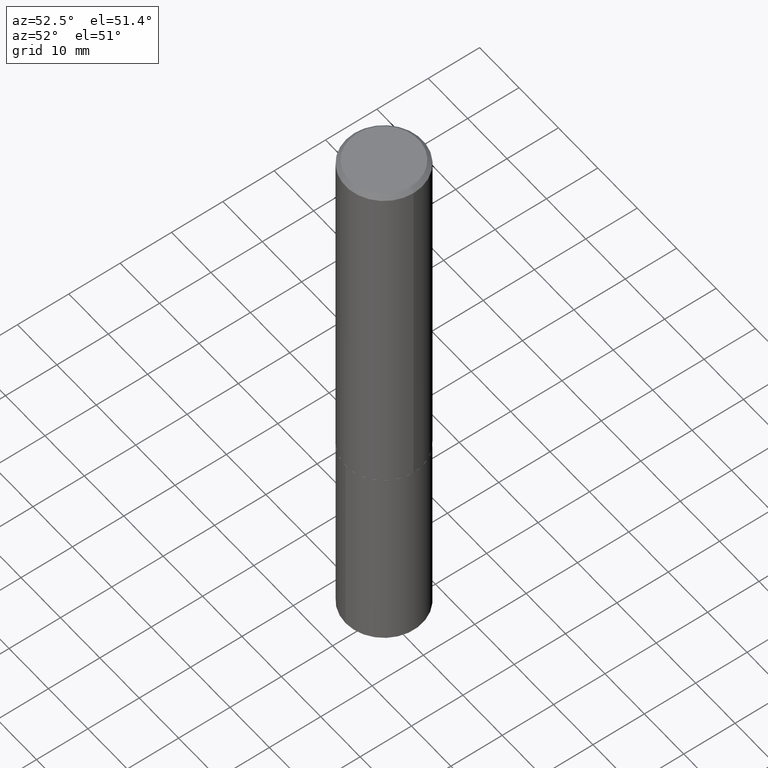
[diagram: clean part render]
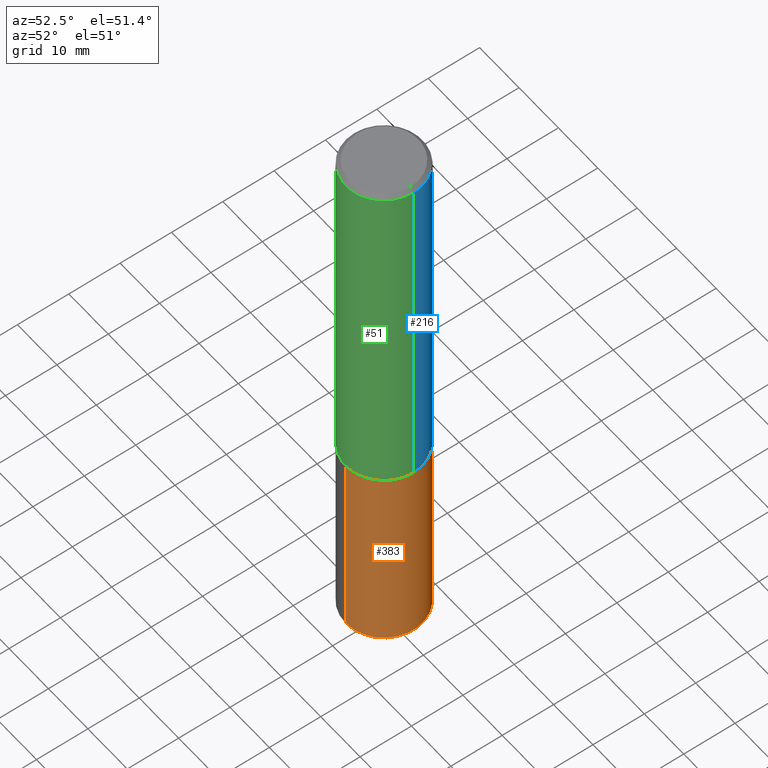
[diagram: same view with three faces highlighted in distinct colors, each labeled with its STEP entity id]
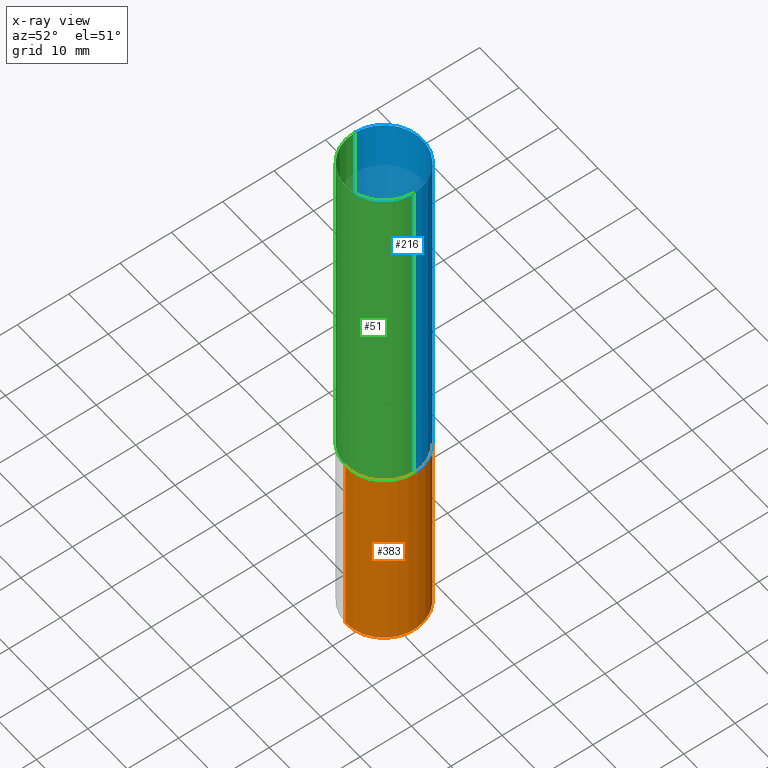
[diagram: x-ray of the same camera — body ghosted, the three highlighted faces saturated]
A machine part, auxiliary view with three faces highlighted in distinct colors.
The next image is the same camera in x-ray (body ghosted, the three faces saturated) — at least one of them is partly hidden behind the body in this view.
Their STEP definitions:

[orange] entity #383 — the highlighted cylindrical surface (partial cylindrical patch) has radius 7.5006 mm, axis along (-0, 0, 1).
#7 = VECTOR ( 'NONE', #241, 39.37007874015748143 ) ;
#33 = CARTESIAN_POINT ( 'NONE',  ( 2.098232698699643346E-15, 0.2952999999999904035, -2.756000000000000671 ) ) ;
#37 = CARTESIAN_POINT ( 'NONE',  ( 6.739712029846235896E-29, -9.622522569851707902E-15, -2.755999999999999783 ) ) ;
#57 = DIRECTION ( 'NONE',  ( -6.982962677686266711E-15, -1.000000000000000000, 3.700437512582814508E-15 ) ) ;
#68 = ORIENTED_EDGE ( 'NONE', *, *, #73, .T. ) ;
#71 = VERTEX_POINT ( 'NONE', #106 ) ;
#73 = EDGE_CURVE ( 'NONE', #205, #102, #199, .T. ) ;
#76 = AXIS2_PLACEMENT_3D ( 'NONE', #37, #176, #294 ) ;
#85 = DIRECTION ( 'NONE',  ( -2.445550241585909983E-29, 3.491364718714222925E-15, 1.000000000000000000 ) ) ;
#102 = VERTEX_POINT ( 'NONE', #377 ) ;
#106 = CARTESIAN_POINT ( 'NONE',  ( 2.098232698699681211E-15, 0.2952999999999904590, -2.756000000000000671 ) ) ;
#115 = AXIS2_PLACEMENT_3D ( 'NONE', #284, #139, #57 ) ;
#117 = FACE_OUTER_BOUND ( 'NONE', #222, .T. ) ;
#139 = DIRECTION ( 'NONE',  ( -2.445550241585909983E-29, 3.491364718714222925E-15, 1.000000000000000000 ) ) ;
#167 = EDGE_CURVE ( 'NONE', #205, #306, #259, .T. ) ;
#171 = CIRCLE ( 'NONE', #76, 0.2953000000000000624 ) ;
#176 = DIRECTION ( 'NONE',  ( -2.445550241585909983E-29, 3.491364718714222925E-15, 1.000000000000000000 ) ) ;
#196 = CARTESIAN_POINT ( 'NONE',  ( -2.062068878720687510E-15, -0.2953000000000096659, -2.755999999999998895 ) ) ;
#199 = CIRCLE ( 'NONE', #115, 0.2953000000000000624 ) ;
#202 = DIRECTION ( 'NONE',  ( -6.982962677686266711E-15, -1.000000000000000000, 3.700437512582814508E-15 ) ) ;
#205 = VERTEX_POINT ( 'NONE', #321 ) ;
#212 = AXIS2_PLACEMENT_3D ( 'NONE', #352, #85, #202 ) ;
#222 = EDGE_LOOP ( 'NONE', ( #68, #253, #272, #335 ) ) ;
#231 = CYLINDRICAL_SURFACE ( 'NONE', #212, 0.2953000000000000624 ) ;
#240 = LINE ( 'NONE', #33, #7 ) ;
#241 = DIRECTION ( 'NONE',  ( -2.445550241585909983E-29, 3.491364718714222925E-15, 1.000000000000000000 ) ) ;
#253 = ORIENTED_EDGE ( 'NONE', *, *, #325, .T. ) ;
#259 = LINE ( 'NONE', #196, #389 ) ;
#272 = ORIENTED_EDGE ( 'NONE', *, *, #285, .F. ) ;
#284 = CARTESIAN_POINT ( 'NONE',  ( 1.049356954220298021E-28, -1.498167874454699460E-14, -4.290974603475090632 ) ) ;
#285 = EDGE_CURVE ( 'NONE', #306, #71, #171, .T. ) ;
#286 = DIRECTION ( 'NONE',  ( -2.445550241585909983E-29, 3.491364718714222925E-15, 1.000000000000000000 ) ) ;
#294 = DIRECTION ( 'NONE',  ( -6.982962677686266711E-15, -1.000000000000000000, 3.700437512582814508E-15 ) ) ;
#306 = VERTEX_POINT ( 'NONE', #322 ) ;
#321 = CARTESIAN_POINT ( 'NONE',  ( -2.062068878720650433E-15, -0.2953000000000151060, -4.290974603475088855 ) ) ;
#322 = CARTESIAN_POINT ( 'NONE',  ( -2.062068878720687510E-15, -0.2953000000000096659, -2.755999999999998895 ) ) ;
#325 = EDGE_CURVE ( 'NONE', #102, #71, #240, .T. ) ;
#335 = ORIENTED_EDGE ( 'NONE', *, *, #167, .F. ) ;
#352 = CARTESIAN_POINT ( 'NONE',  ( 6.739712029846235896E-29, -9.622522569851707902E-15, -2.755999999999999783 ) ) ;
#377 = CARTESIAN_POINT ( 'NONE',  ( 2.098232698699681211E-15, 0.2952999999999851299, -4.290974603475091520 ) ) ;
#383 = ADVANCED_FACE ( 'NONE', ( #117 ), #231, .T. ) ;
#389 = VECTOR ( 'NONE', #286, 39.37007874015748143 ) ;

[blue] entity #216 — the highlighted cylindrical surface (partial cylindrical patch) has radius 7.5006 mm, axis along (-0, 0, 1).
#30 = VERTEX_POINT ( 'NONE', #193 ) ;
#32 = DIRECTION ( 'NONE',  ( 1.000000000000000000, -6.982962677686269077E-15, 0.000000000000000000 ) ) ;
#62 = ORIENTED_EDGE ( 'NONE', *, *, #331, .T. ) ;
#63 = DIRECTION ( 'NONE',  ( -2.445468806185136877E-29, 3.491481338843145188E-15, 1.000000000000000000 ) ) ;
#74 = ORIENTED_EDGE ( 'NONE', *, *, #194, .T. ) ;
#75 = CARTESIAN_POINT ( 'NONE',  ( 0.000000000000000000, 0.000000000000000000, 0.000000000000000000 ) ) ;
#87 = AXIS2_PLACEMENT_3D ( 'NONE', #358, #235, #32 ) ;
#112 = CARTESIAN_POINT ( 'NONE',  ( -0.2953000000000001735, 2.098232698699577081E-15, -1.452561532152274683E-29 ) ) ;
#120 = CARTESIAN_POINT ( 'NONE',  ( 7.642090019328602662E-31, -1.091087918388490267E-16, -0.03125000000000020817 ) ) ;
#123 = CARTESIAN_POINT ( 'NONE',  ( 0.2953000000000000069, -2.171177670559603663E-15, -0.03125000000000020817 ) ) ;
#128 = VECTOR ( 'NONE', #63, 39.37007874015748143 ) ;
#130 = VERTEX_POINT ( 'NONE', #230 ) ;
#134 = ORIENTED_EDGE ( 'NONE', *, *, #304, .F. ) ;
#137 = CARTESIAN_POINT ( 'NONE',  ( 0.2953000000000003400, -1.168284570790304451E-14, -2.755499999999999616 ) ) ;
#144 = DIRECTION ( 'NONE',  ( 1.000000000000000000, -6.982962677686267499E-15, 0.000000000000000000 ) ) ;
#154 = DIRECTION ( 'NONE',  ( -2.445468806185136597E-29, 3.491481338843145583E-15, 1.000000000000000000 ) ) ;
#173 = DIRECTION ( 'NONE',  ( 1.000000000000000000, -6.982962677686268288E-15, 4.876176775795936353E-29 ) ) ;
#175 = AXIS2_PLACEMENT_3D ( 'NONE', #120, #154, #144 ) ;
#179 = EDGE_LOOP ( 'NONE', ( #62, #74, #134, #324 ) ) ;
#193 = CARTESIAN_POINT ( 'NONE',  ( -0.2953000000000003400, -7.522544130482708923E-15, -2.755499999999999616 ) ) ;
#194 = EDGE_CURVE ( 'NONE', #30, #130, #381, .T. ) ;
#195 = DIRECTION ( 'NONE',  ( -2.445468806185136597E-29, 3.491481338843145583E-15, 1.000000000000000000 ) ) ;
#210 = CARTESIAN_POINT ( 'NONE',  ( 0.2953000000000001735, -2.062068878720756141E-15, 1.439935001892540778E-29 ) ) ;
#211 = VERTEX_POINT ( 'NONE', #137 ) ;
#216 = ADVANCED_FACE ( 'NONE', ( #224 ), #342, .T. ) ;
#220 = VERTEX_POINT ( 'NONE', #123 ) ;
#224 = FACE_OUTER_BOUND ( 'NONE', #179, .T. ) ;
#225 = CIRCLE ( 'NONE', #87, 0.2953000000000003400 ) ;
#227 = DIRECTION ( 'NONE',  ( -2.445468806185136877E-29, 3.491481338843145188E-15, 1.000000000000000000 ) ) ;
#229 = AXIS2_PLACEMENT_3D ( 'NONE', #75, #195, #173 ) ;
#230 = CARTESIAN_POINT ( 'NONE',  ( -0.2953000000000000069, -2.766710111810989090E-15, -0.03125000000000020817 ) ) ;
#235 = DIRECTION ( 'NONE',  ( -2.445468806185136597E-29, 3.491481338843145583E-15, 1.000000000000000000 ) ) ;
#291 = EDGE_CURVE ( 'NONE', #211, #220, #388, .T. ) ;
#300 = VECTOR ( 'NONE', #227, 39.37007874015748143 ) ;
#304 = EDGE_CURVE ( 'NONE', #220, #130, #343, .T. ) ;
#324 = ORIENTED_EDGE ( 'NONE', *, *, #291, .F. ) ;
#331 = EDGE_CURVE ( 'NONE', #211, #30, #225, .T. ) ;
#342 = CYLINDRICAL_SURFACE ( 'NONE', #229, 0.2953000000000001735 ) ;
#343 = CIRCLE ( 'NONE', #175, 0.2953000000000000069 ) ;
#358 = CARTESIAN_POINT ( 'NONE',  ( 6.738489295443143094E-29, -9.620776829182285610E-15, -2.755499999999999616 ) ) ;
#381 = LINE ( 'NONE', #112, #300 ) ;
#388 = LINE ( 'NONE', #210, #128 ) ;

[green] entity #51 — the highlighted cylindrical surface (partial cylindrical patch) has radius 7.5006 mm, axis along (-0, 0, 1).
#30 = VERTEX_POINT ( 'NONE', #193 ) ;
#41 = FACE_OUTER_BOUND ( 'NONE', #234, .T. ) ;
#42 = EDGE_CURVE ( 'NONE', #130, #220, #164, .T. ) ;
#46 = DIRECTION ( 'NONE',  ( -2.445468806185136597E-29, 3.491481338843145583E-15, 1.000000000000000000 ) ) ;
#49 = DIRECTION ( 'NONE',  ( -2.445468806185136597E-29, 3.491481338843145583E-15, 1.000000000000000000 ) ) ;
#51 = ADVANCED_FACE ( 'NONE', ( #41 ), #274, .T. ) ;
#63 = DIRECTION ( 'NONE',  ( -2.445468806185136877E-29, 3.491481338843145188E-15, 1.000000000000000000 ) ) ;
#92 = AXIS2_PLACEMENT_3D ( 'NONE', #366, #49, #261 ) ;
#95 = EDGE_CURVE ( 'NONE', #30, #211, #181, .T. ) ;
#112 = CARTESIAN_POINT ( 'NONE',  ( -0.2953000000000001735, 2.098232698699577081E-15, -1.452561532152274683E-29 ) ) ;
#113 = CARTESIAN_POINT ( 'NONE',  ( 6.738489295443143094E-29, -9.620776829182285610E-15, -2.755499999999999616 ) ) ;
#123 = CARTESIAN_POINT ( 'NONE',  ( 0.2953000000000000069, -2.171177670559603663E-15, -0.03125000000000020817 ) ) ;
#128 = VECTOR ( 'NONE', #63, 39.37007874015748143 ) ;
#130 = VERTEX_POINT ( 'NONE', #230 ) ;
#132 = ORIENTED_EDGE ( 'NONE', *, *, #95, .T. ) ;
#137 = CARTESIAN_POINT ( 'NONE',  ( 0.2953000000000003400, -1.168284570790304451E-14, -2.755499999999999616 ) ) ;
#163 = DIRECTION ( 'NONE',  ( 1.000000000000000000, -6.982962677686267499E-15, 0.000000000000000000 ) ) ;
#164 = CIRCLE ( 'NONE', #350, 0.2953000000000000069 ) ;
#181 = CIRCLE ( 'NONE', #355, 0.2953000000000003400 ) ;
#185 = CARTESIAN_POINT ( 'NONE',  ( 7.642090019328602662E-31, -1.091087918388490267E-16, -0.03125000000000020817 ) ) ;
#193 = CARTESIAN_POINT ( 'NONE',  ( -0.2953000000000003400, -7.522544130482708923E-15, -2.755499999999999616 ) ) ;
#194 = EDGE_CURVE ( 'NONE', #30, #130, #381, .T. ) ;
#210 = CARTESIAN_POINT ( 'NONE',  ( 0.2953000000000001735, -2.062068878720756141E-15, 1.439935001892540778E-29 ) ) ;
#211 = VERTEX_POINT ( 'NONE', #137 ) ;
#214 = ORIENTED_EDGE ( 'NONE', *, *, #42, .F. ) ;
#220 = VERTEX_POINT ( 'NONE', #123 ) ;
#227 = DIRECTION ( 'NONE',  ( -2.445468806185136877E-29, 3.491481338843145188E-15, 1.000000000000000000 ) ) ;
#230 = CARTESIAN_POINT ( 'NONE',  ( -0.2953000000000000069, -2.766710111810989090E-15, -0.03125000000000020817 ) ) ;
#234 = EDGE_LOOP ( 'NONE', ( #341, #132, #267, #214 ) ) ;
#260 = DIRECTION ( 'NONE',  ( -2.445468806185136597E-29, 3.491481338843145583E-15, 1.000000000000000000 ) ) ;
#261 = DIRECTION ( 'NONE',  ( 1.000000000000000000, -6.982962677686268288E-15, 4.876176775795936353E-29 ) ) ;
#267 = ORIENTED_EDGE ( 'NONE', *, *, #291, .T. ) ;
#274 = CYLINDRICAL_SURFACE ( 'NONE', #92, 0.2953000000000001735 ) ;
#291 = EDGE_CURVE ( 'NONE', #211, #220, #388, .T. ) ;
#300 = VECTOR ( 'NONE', #227, 39.37007874015748143 ) ;
#341 = ORIENTED_EDGE ( 'NONE', *, *, #194, .F. ) ;
#350 = AXIS2_PLACEMENT_3D ( 'NONE', #185, #46, #163 ) ;
#355 = AXIS2_PLACEMENT_3D ( 'NONE', #113, #260, #379 ) ;
#366 = CARTESIAN_POINT ( 'NONE',  ( 0.000000000000000000, 0.000000000000000000, 0.000000000000000000 ) ) ;
#379 = DIRECTION ( 'NONE',  ( 1.000000000000000000, -6.982962677686269077E-15, 0.000000000000000000 ) ) ;
#381 = LINE ( 'NONE', #112, #300 ) ;
#388 = LINE ( 'NONE', #210, #128 ) ;